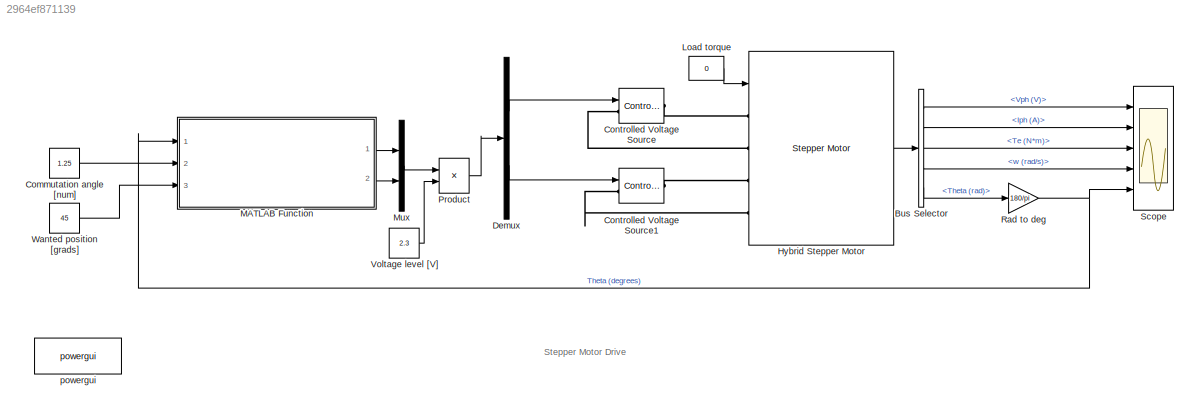
MODEL slx_2964ef871139
KIND model
CONFIG PreLoadFcn = assignin('base','Ts',1e-6);
BLOCK [BusSelector] Bus Selector
  OutputSignals = Vph (V),Iph (A),Te (N*m),w (rad/s),Theta (rad)
  Ports = [1, 5]
BLOCK [Constant] Commutation angle [num]
  Value = 1.25
BLOCK [Reference] Controlled Voltage Source  REF=powerlib/Electrical
Sources/Controlled Voltage Source
  Amplitude = 0
  Frequency = 0
  Initialize = on
  Measurements = None
  Phase = 0
  Ports = [1, 0, 0, 0, 0, 1, 1]
  SourceBlock = powerlib/Electrical\nSources/Controlled Voltage Source
  SourceType = Controlled Voltage Source
  Source_Type = AC
BLOCK [Reference] Controlled Voltage Source1  REF=powerlib/Electrical
Sources/Controlled Voltage Source
  Amplitude = 0
  Frequency = 0
  Initialize = on
  Measurements = None
  Phase = 0
  Ports = [1, 0, 0, 0, 0, 1, 1]
  SourceBlock = powerlib/Electrical\nSources/Controlled Voltage Source
  SourceType = Controlled Voltage Source
  Source_Type = AC
BLOCK [Demux] Demux
  DisplayOption = bar
  Outputs = 2
  Ports = [1, 2]
BLOCK [Reference] Hybrid Stepper Motor  REF=powerlib/Machines/Stepper Motor
  B = 1e-7*1000
  J = 2.8e-05
  L = 1.65e-3
  Lmax = 10e-3
  Lmin = 2e-3
  MotorType = Permanent-magnet / Hybrid
  NumberOfPhases_1 = 2
  NumberOfPhases_2 = 3
  Ports = [1, 1, 0, 0, 0, 4]
  PresetModel_1 = <empty>
  PresetModel_2 = <empty>
  Psim = 0.00853
  R = 0.77
  SourceBlock = powerlib/Machines/Stepper Motor
  SourceType = Stepper Motor
  Step_angle = 1.8
  Tdm = 0.001
  TsBlock = -1
  TsPowergui = 0
  pos0 = 0
  w0 = 0
BLOCK [Constant] Load torque
  Value = 0
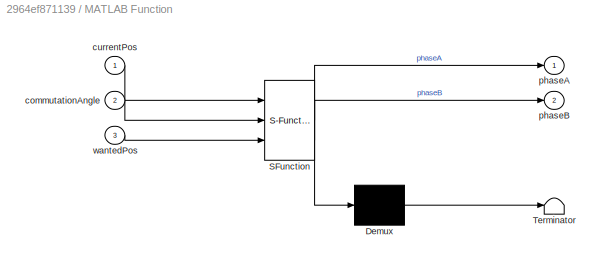
BLOCK [SubSystem] MATLAB Function
  ErrorFcn = Stateflow.Translate.translate
  FunctionWithSeparateData = off
  MaskHideContents = off
  MinAlgLoopOccurrences = off
  Opaque = off
  PermitHierarchicalResolution = ExplicitOnly
  Ports = [3, 2]
  PropExecContextOutsideSubsystem = off
  RTWSystemCode = Auto
  RequestExecContextInheritance = off
  SFBlockType = MATLAB Function
  TreatAsAtomicUnit = on
BLOCK [Demux] MATLAB Function/ Demux 
  Outputs = 1
  Ports = [1, 1]
BLOCK [S-Function] MATLAB Function/ SFunction 
  EnableBusSupport = on
  FunctionName = sf_sfun
  PortCounts = [3 3]
  Ports = [3, 3]
  Tag = Stateflow S-Function sympowered_stepper_drive 2
BLOCK [Terminator] MATLAB Function/ Terminator 
BLOCK [Inport] MATLAB Function/commutationAngle
  IconDisplay = Port number
  Port = 2
BLOCK [Inport] MATLAB Function/currentPos
  IconDisplay = Port number
BLOCK [Outport] MATLAB Function/phaseA
  IconDisplay = Port number
BLOCK [Outport] MATLAB Function/phaseB
  IconDisplay = Port number
  Port = 2
BLOCK [Inport] MATLAB Function/wantedPos
  IconDisplay = Port number
  Port = 3
BLOCK [Mux] Mux
  DisplayOption = bar
  Inputs = 2
  Ports = [2, 1]
BLOCK [Product] Product
  InputSameDT = off
  OutDataTypeStr = Inherit: Inherit via internal rule
  Ports = [2, 1]
  RndMeth = Floor
  SaturateOnIntegerOverflow = off
BLOCK [Gain] Rad to deg
  Gain = 180/pi
  OutDataTypeStr = Inherit: Inherit via internal rule
  ParamDataTypeStr = Inherit: Inherit via internal rule
  SaturateOnIntegerOverflow = off
BLOCK [Scope] Scope
  DataFormat = StructureWithTime
  Floating = off
  LimitDataPoints = off
  NumInputPorts = 5
  Ports = [5]
  SampleTime = 0
  SaveName = VIX
  SaveToWorkspace = on
  ShowLegends = off
  TimeRange = 0.25
  YMax = 35~3~0.25~9~60
  YMin = -35~-3~-0.35~-1~0
  ZoomMode = xonly
BLOCK [Constant] Voltage level [V]
  Value = 2.3
BLOCK [Constant] Wanted position [grads]
  Value = 45
BLOCK [Reference] powergui  REF=powerlib/powergui
  DisableRonSwitches = off
  DisableSnubberDevices = off
  DisableVfSwitches = off
  DisplayEquations = off
  DisplayStyle = 1
  EnableUseOfTLC = off
  ErrMax = 1e-4
  Frange = [0:2:500]
  FreqAxis = off
  FunctionMessages = off
  HookPort = off
  Interpol = off
  Iterations = 50
  MaxFrequency = 1000
  Pbase = 100e6
  Ports = []
  ResistiveCurrentMeasurement = off
  RestoreLinks = warning
  RmsSteady = 1
  SPID = off
  SampleTime = Ts
  ShowGrid = off
  SolverType = Tustin
  SourceBlock = powerlib/powergui
  SourceType = PSB option menu block
  StartTime = 0.0
  SwTol = 0
  Ts = 0
  UnitsV = kV
  UnitsW = MW
  UserDataPersistent = on
  Xlog = on
  Ylog = off
  ZoomFFT = on
  cycles = 1
  display = off
  echomessages = off
  frequency = 60
  frequencyindice = 0
  frequencyindicesteady = 1
  fundamental = 60
  methode = off
  save = off
  variable = ZData
  x0status = blocks
ANNOTATION (root): Stepper Motor Drive
LINE Bus Selector:1 -> Scope:1
LINE Bus Selector:2 -> Scope:2
LINE Bus Selector:3 -> Scope:3
LINE Bus Selector:4 -> Scope:4
LINE Bus Selector:5 -> Rad to deg:1
LINE Commutation angle [num]:1 -> MATLAB Function:2
LINE Demux:1 -> Controlled Voltage Source:1
LINE Demux:2 -> Controlled Voltage Source1:1
LINE Hybrid Stepper Motor:1 -> Bus Selector:1
LINE Load torque:1 -> Hybrid Stepper Motor:1
LINE MATLAB Function:1 -> Mux:1
LINE MATLAB Function:2 -> Mux:2
LINE Mux:1 -> Product:1
LINE Product:1 -> Demux:1
NET Rad to deg:1 -> MATLAB Function:1, Scope:5
LINE Voltage level [V]:1 -> Product:2
LINE Wanted position [grads]:1 -> MATLAB Function:3
PLINE Controlled Voltage Source1:LConn1 -- Hybrid Stepper Motor:LConn4
PLINE Controlled Voltage Source1:RConn1 -- Hybrid Stepper Motor:LConn3
PLINE Controlled Voltage Source:LConn1 -- Hybrid Stepper Motor:LConn2
PLINE Controlled Voltage Source:RConn1 -- Hybrid Stepper Motor:LConn1
note: NET lines group one-source signal fan-out (src -> all destinations, sorted); 1:1 wires keep LINE
